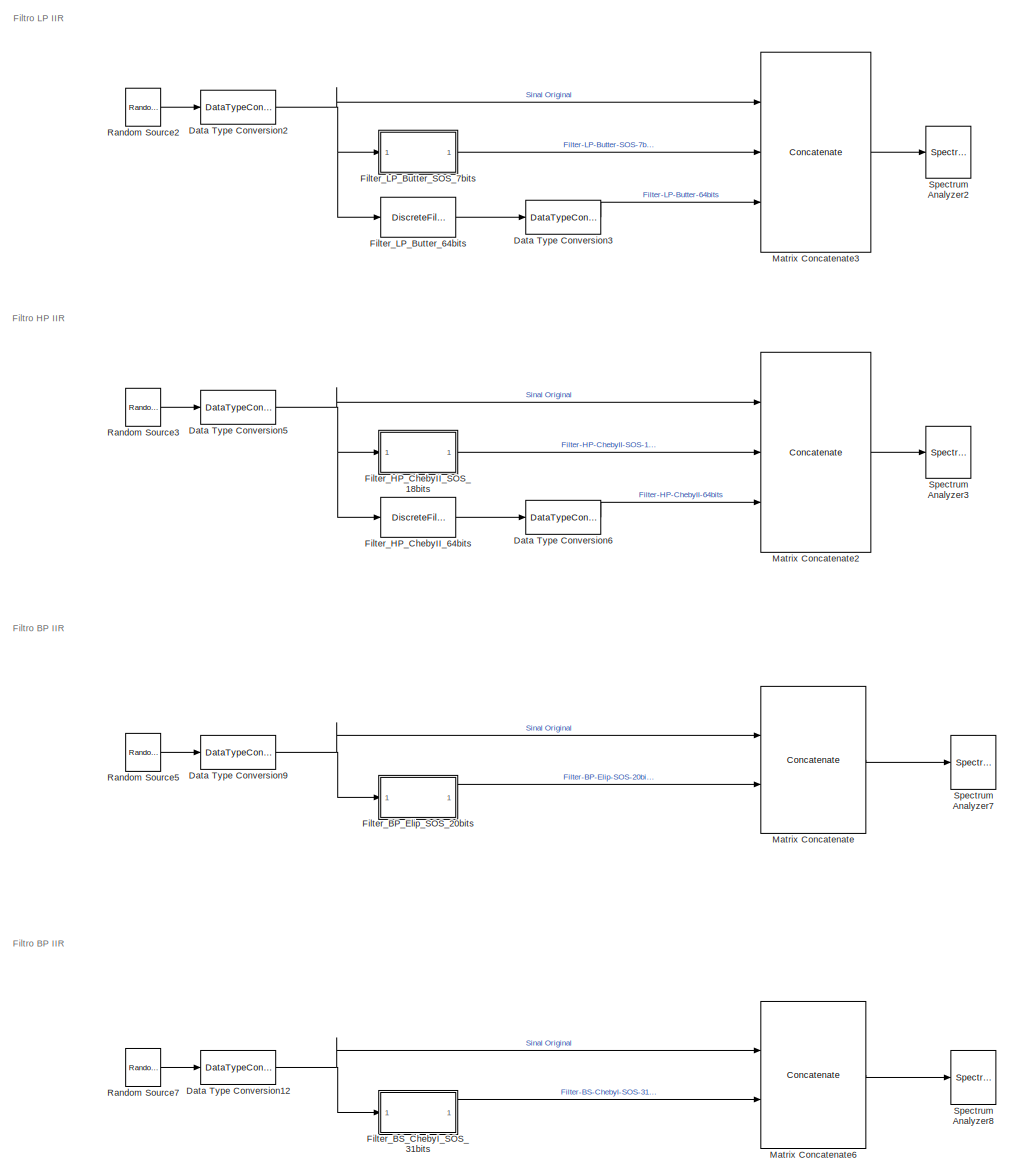
[diagram: root canvas - part 1/2, left side, full height]
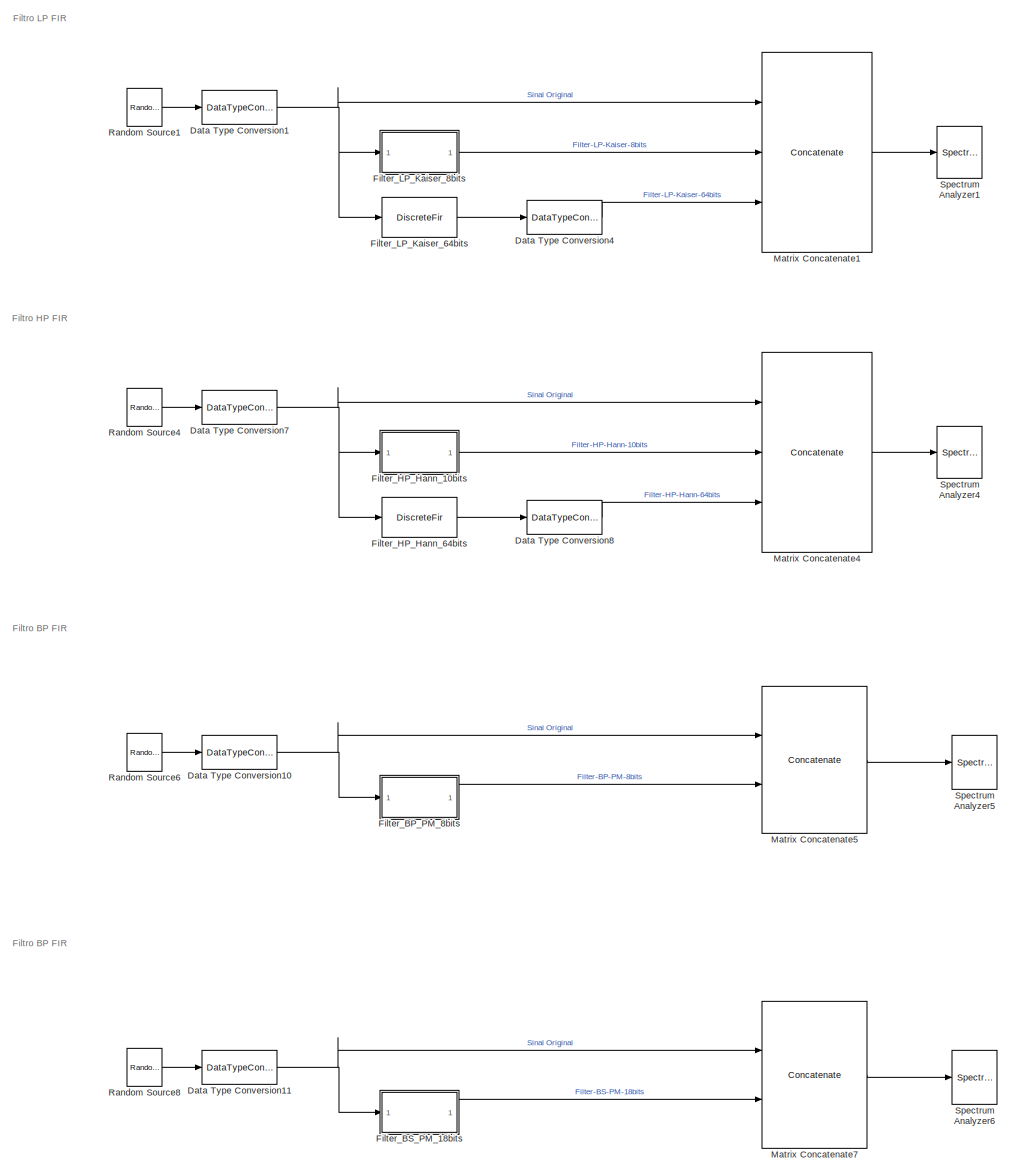
[diagram: root canvas - part 2/2, right side, full height]
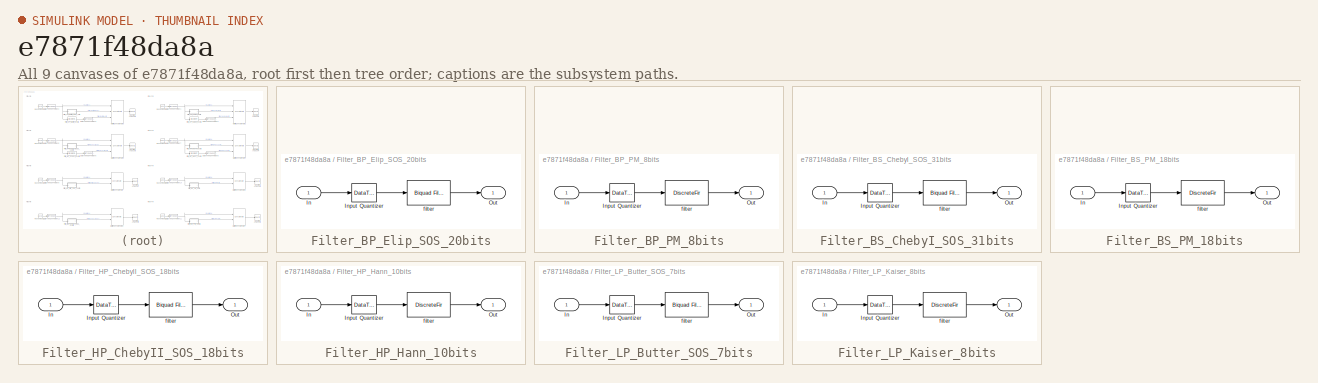
[diagram: thumbnail index - all 9 canvases of the model, root first then tree order]
MODEL slx_e7871f48da8a
KIND model
CONFIG AbsTol = auto
CONFIG FixedStep = auto
CONFIG MaxStep = auto
CONFIG MinStep = auto
CONFIG RelTol = 1e-3
CONFIG SampleTimeConstraint = Unconstrained
CONFIG Solver = FixedStepDiscrete
CONFIG SolverMode = Auto
CONFIG SolverName = FixedStepDiscrete
CONFIG StartTime = 0.0
CONFIG StopTime = 2
BLOCK [DataTypeConversion] Data Type Conversion1
  Commented = on
  RndMeth = Floor
  SaturateOnIntegerOverflow = off
BLOCK [DataTypeConversion] Data Type Conversion10
  Commented = on
  RndMeth = Floor
  SaturateOnIntegerOverflow = off
BLOCK [DataTypeConversion] Data Type Conversion11
  RndMeth = Floor
  SaturateOnIntegerOverflow = off
BLOCK [DataTypeConversion] Data Type Conversion12
  Commented = on
  RndMeth = Floor
  SaturateOnIntegerOverflow = off
BLOCK [DataTypeConversion] Data Type Conversion2
  Commented = on
  RndMeth = Floor
  SaturateOnIntegerOverflow = off
BLOCK [DataTypeConversion] Data Type Conversion3
  Commented = on
  RndMeth = Floor
  SaturateOnIntegerOverflow = off
BLOCK [DataTypeConversion] Data Type Conversion4
  Commented = on
  RndMeth = Floor
  SaturateOnIntegerOverflow = off
BLOCK [DataTypeConversion] Data Type Conversion5
  Commented = on
  RndMeth = Floor
  SaturateOnIntegerOverflow = off
BLOCK [DataTypeConversion] Data Type Conversion6
  Commented = on
  RndMeth = Floor
  SaturateOnIntegerOverflow = off
BLOCK [DataTypeConversion] Data Type Conversion7
  Commented = on
  RndMeth = Floor
  SaturateOnIntegerOverflow = off
BLOCK [DataTypeConversion] Data Type Conversion8
  Commented = on
  RndMeth = Floor
  SaturateOnIntegerOverflow = off
BLOCK [DataTypeConversion] Data Type Conversion9
  Commented = on
  RndMeth = Floor
  SaturateOnIntegerOverflow = off
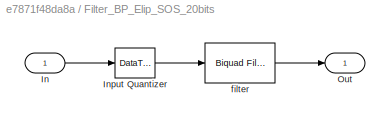
BLOCK [SubSystem] Filter_BP_Elip_SOS_20bits
  Commented = on
  Ports = [1, 1]
  RequestExecContextInheritance = off
  Tag = BlockMethodSubSystem
BLOCK [Inport] Filter_BP_Elip_SOS_20bits/In
  IconDisplay = Port number
BLOCK [DataTypeConversion] Filter_BP_Elip_SOS_20bits/Input Quantizer
  OutDataTypeStr = fixdt(1,16,15)
  RndMeth = Round
BLOCK [Outport] Filter_BP_Elip_SOS_20bits/Out
  IconDisplay = Port number
BLOCK [Reference] Filter_BP_Elip_SOS_20bits/filter  REF=dsparch4/Biquad Filter
  Ports = [1, 1]
  SourceBlock = dsparch4/Biquad Filter
  SourceType = Biquad Filter
  UserDataPersistent = on
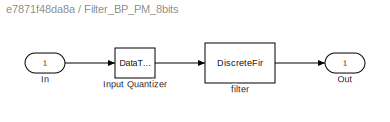
BLOCK [SubSystem] Filter_BP_PM_8bits
  Commented = on
  Ports = [1, 1]
  RequestExecContextInheritance = off
  Tag = BlockMethodSubSystem
BLOCK [Inport] Filter_BP_PM_8bits/In
  IconDisplay = Port number
BLOCK [DataTypeConversion] Filter_BP_PM_8bits/Input Quantizer
  OutDataTypeStr = fixdt(1,16,15)
  RndMeth = Round
BLOCK [Outport] Filter_BP_PM_8bits/Out
  IconDisplay = Port number
BLOCK [DiscreteFir] Filter_BP_PM_8bits/filter
  AccumDataTypeStr = fixdt(true,27,25)
  CoefDataTypeStr = fixdt(true,8,10)
  Coefficients = [-0.0433412092937293658 0.00428125381265335829 0.00433549487836447974 0.00392877576103001919 0.00473672650552339151 -0.00113536747739367079 0.00225664087871407099 0.0129845358018076552 -0.00161672199950467889 -0.0104604010793571591 0.0163185558804867653 0.0128200383399435375 -0.0195811015916752505 0.00139459356195246087 0.0265908628917521095 -0.00801815848233358545 -0.0159846853288865345 0.0182879...<+1281ch>
  FilterStructure = Direct form symmetric
  InputPortMap = u0
  InputProcessing = Columns as channels (frame based)
  OutDataTypeStr = fixdt(true,27,25)
  OutputPortMap = o0
  Ports = [1, 1]
  ProductDataTypeStr = fixdt(true,24,25)
  RndMeth = Convergent
  TapSumDataTypeStr = fixdt(true,17,15)
BLOCK [SubSystem] Filter_BS_ChebyI_SOS_31bits
  Commented = on
  Ports = [1, 1]
  RequestExecContextInheritance = off
  Tag = BlockMethodSubSystem
BLOCK [Inport] Filter_BS_ChebyI_SOS_31bits/In
  IconDisplay = Port number
BLOCK [DataTypeConversion] Filter_BS_ChebyI_SOS_31bits/Input Quantizer
  OutDataTypeStr = fixdt(1,16,15)
  RndMeth = Round
BLOCK [Outport] Filter_BS_ChebyI_SOS_31bits/Out
  IconDisplay = Port number
BLOCK [Reference] Filter_BS_ChebyI_SOS_31bits/filter  REF=dsparch4/Biquad Filter
  Ports = [1, 1]
  SourceBlock = dsparch4/Biquad Filter
  SourceType = Biquad Filter
  UserDataPersistent = on
BLOCK [SubSystem] Filter_BS_PM_18bits
  Ports = [1, 1]
  RequestExecContextInheritance = off
  Tag = BlockMethodSubSystem
BLOCK [Inport] Filter_BS_PM_18bits/In
  IconDisplay = Port number
BLOCK [DataTypeConversion] Filter_BS_PM_18bits/Input Quantizer
  OutDataTypeStr = fixdt(1,16,15)
  RndMeth = Round
BLOCK [Outport] Filter_BS_PM_18bits/Out
  IconDisplay = Port number
BLOCK [DiscreteFir] Filter_BS_PM_18bits/filter
  AccumDataTypeStr = fixdt(true,35,32)
  CoefDataTypeStr = fixdt(true,18,17)
  Coefficients = [0.00939244855741547431 0.00168644324503250398 -0.00123334499269933651 0.00145794752474150894 -0.00170828863653412779 0.0010371674316927424 -0.000634686404143752943 0.00136311298569206278 -0.00129284830014917774 0.000232789421018792837 -0.000621585322147632049 0.00144095326498087451 -0.000402030343464907663 -9.93042424858531166e-05 -0.00117660388067255444 0.000857139817899975971 0.0004755766975208...<+5732ch>
  FilterStructure = Direct form symmetric
  InputPortMap = u0
  InputProcessing = Columns as channels (frame based)
  OutDataTypeStr = fixdt(true,35,32)
  OutputPortMap = o0
  Ports = [1, 1]
  ProductDataTypeStr = fixdt(true,34,32)
  RndMeth = Convergent
  TapSumDataTypeStr = fixdt(true,17,15)
BLOCK [DiscreteFilter] Filter_HP_ChebyII_64bits
  Commented = on
  Denominator = [1 0.877081919298363322 1.20330623409765192 0.426634402615272967 0.249553249203958494 0.0208863375040825895 0.00662248810328856363]
  InputPortMap = u0
  InputProcessing = Columns as channels (frame based)
  Numerator = [0.0559188313546608654 -0.13637683754179869 0.237261208219190139 -0.27576555775587841 0.237261208219190139 -0.13637683754179869 0.0559188313546608584]
  Ports = [1, 1]
  Tag = BlockMethodSubSystem
  a0EqualsOne = on
BLOCK [SubSystem] Filter_HP_ChebyII_SOS_18bits
  Commented = on
  Ports = [1, 1]
  RequestExecContextInheritance = off
  Tag = BlockMethodSubSystem
BLOCK [Inport] Filter_HP_ChebyII_SOS_18bits/In
  IconDisplay = Port number
BLOCK [DataTypeConversion] Filter_HP_ChebyII_SOS_18bits/Input Quantizer
  OutDataTypeStr = fixdt(1,16,15)
  RndMeth = Round
BLOCK [Outport] Filter_HP_ChebyII_SOS_18bits/Out
  IconDisplay = Port number
BLOCK [Reference] Filter_HP_ChebyII_SOS_18bits/filter  REF=dsparch4/Biquad Filter
  Ports = [1, 1]
  SourceBlock = dsparch4/Biquad Filter
  SourceType = Biquad Filter
  UserDataPersistent = on
BLOCK [SubSystem] Filter_HP_Hann_10bits
  Commented = on
  Ports = [1, 1]
  RequestExecContextInheritance = off
  Tag = BlockMethodSubSystem
BLOCK [Inport] Filter_HP_Hann_10bits/In
  IconDisplay = Port number
BLOCK [DataTypeConversion] Filter_HP_Hann_10bits/Input Quantizer
  OutDataTypeStr = fixdt(1,16,15)
  RndMeth = Round
BLOCK [Outport] Filter_HP_Hann_10bits/Out
  IconDisplay = Port number
BLOCK [DiscreteFir] Filter_HP_Hann_10bits/filter
  AccumDataTypeStr = fixdt(true,27,25)
  CoefDataTypeStr = fixdt(true,10,10)
  Coefficients = [-3.16228700308905018e-05 6.58621006149563763e-05 0.000776097424594572832 -0.00123190726621532883 -0.00166048429484726384 0.00472150775562455317 0.000207579074215400968 -0.0098865670153832335 0.00661569202063748852 0.013228130452963581 -0.0204947917682235907 -0.00852732671830981441 0.0401741168966580214 -0.0129883671048673984 -0.0612137762552903905 0.0693172305105436287 0.0774510719237060941 -0.30...<+454ch>
  FilterStructure = Direct form symmetric
  InputPortMap = u0
  InputProcessing = Columns as channels (frame based)
  OutDataTypeStr = fixdt(true,27,25)
  OutputPortMap = o0
  Ports = [1, 1]
  ProductDataTypeStr = fixdt(true,26,25)
  RndMeth = Convergent
  TapSumDataTypeStr = fixdt(true,17,15)
BLOCK [DiscreteFir] Filter_HP_Hann_64bits
  Coefficients = [-3.16228700308905018e-05 6.58621006149563763e-05 0.000776097424594572832 -0.00123190726621532883 -0.00166048429484726384 0.00472150775562455317 0.000207579074215400968 -0.0098865670153832335 0.00661569202063748852 0.013228130452963581 -0.0204947917682235907 -0.00852732671830981441 0.0401741168966580214 -0.0129883671048673984 -0.0612137762552903905 0.0693172305105436287 0.0774510719237060941 -0.30...<+454ch>
  Commented = on
  FilterStructure = Direct form symmetric
  InputPortMap = u0
  InputProcessing = Columns as channels (frame based)
  OutputPortMap = o0
  Ports = [1, 1]
  Tag = BlockMethodSubSystem
BLOCK [DiscreteFilter] Filter_LP_Butter_64bits
  Commented = on
  Denominator = [1 0.169613480636834985 1.0725472360938022 0.126588905837326127 0.296672196811545885 0.0216830884738356162 0.0209853628033078755 0.000713622450830073379 0.000177472924043483085]
  InputPortMap = u0
  InputProcessing = Columns as channels (frame based)
  Numerator = [0.0188176788491913188 0.150541430793530551 0.526895007777356872 1.05379001555471374 1.31723751944339229 1.05379001555471374 0.526895007777356872 0.150541430793530551 0.0188176788491913188]
  Ports = [1, 1]
  Tag = BlockMethodSubSystem
  a0EqualsOne = on
BLOCK [SubSystem] Filter_LP_Butter_SOS_7bits
  Commented = on
  Ports = [1, 1]
  RequestExecContextInheritance = off
  Tag = BlockMethodSubSystem
BLOCK [Inport] Filter_LP_Butter_SOS_7bits/In
  IconDisplay = Port number
BLOCK [DataTypeConversion] Filter_LP_Butter_SOS_7bits/Input Quantizer
  OutDataTypeStr = fixdt(1,16,15)
  RndMeth = Round
BLOCK [Outport] Filter_LP_Butter_SOS_7bits/Out
  IconDisplay = Port number
BLOCK [Reference] Filter_LP_Butter_SOS_7bits/filter  REF=dsparch4/Biquad Filter
  Ports = [1, 1]
  SourceBlock = dsparch4/Biquad Filter
  SourceType = Biquad Filter
  UserDataPersistent = on
BLOCK [DiscreteFir] Filter_LP_Kaiser_64bits
  Coefficients = [0.0273632501347615166 -0.0143274016333116705 -0.0496900071545827646 0.0522341743948118928 0.0722918445052733033 -0.143149069954147889 -0.0891767371893470578 0.536803318067287871 0.961649065426961824 0.536803318067287871 -0.0891767371893470578 -0.143149069954147889 0.0722918445052733033 0.0522341743948118928 -0.0496900071545827646 -0.0143274016333116705 0.0273632501347615166]
  Commented = on
  FilterStructure = Direct form symmetric
  InputPortMap = u0
  InputProcessing = Columns as channels (frame based)
  OutputPortMap = o0
  Ports = [1, 1]
  Tag = BlockMethodSubSystem
BLOCK [SubSystem] Filter_LP_Kaiser_8bits
  Commented = on
  Ports = [1, 1]
  RequestExecContextInheritance = off
  Tag = BlockMethodSubSystem
BLOCK [Inport] Filter_LP_Kaiser_8bits/In
  IconDisplay = Port number
BLOCK [DataTypeConversion] Filter_LP_Kaiser_8bits/Input Quantizer
  OutDataTypeStr = fixdt(1,16,15)
  RndMeth = Round
BLOCK [Outport] Filter_LP_Kaiser_8bits/Out
  IconDisplay = Port number
BLOCK [DiscreteFir] Filter_LP_Kaiser_8bits/filter
  AccumDataTypeStr = fixdt(true,25,22)
  CoefDataTypeStr = fixdt(true,8,7)
  Coefficients = [0.0273632501347615166 -0.0143274016333116705 -0.0496900071545827646 0.0522341743948118928 0.0722918445052733033 -0.143149069954147889 -0.0891767371893470578 0.536803318067287871 0.961649065426961824 0.536803318067287871 -0.0891767371893470578 -0.143149069954147889 0.0722918445052733033 0.0522341743948118928 -0.0496900071545827646 -0.0143274016333116705 0.0273632501347615166]
  FilterStructure = Direct form symmetric
  InputPortMap = u0
  InputProcessing = Columns as channels (frame based)
  OutDataTypeStr = fixdt(true,25,22)
  OutputPortMap = o0
  Ports = [1, 1]
  ProductDataTypeStr = fixdt(true,24,22)
  RndMeth = Convergent
  TapSumDataTypeStr = fixdt(true,17,15)
BLOCK [Concatenate] Matrix Concatenate
  Commented = on
  ConcatenateDimension = 2
  Mode = Multidimensional array
  Ports = [2, 1]
BLOCK [Concatenate] Matrix Concatenate1
  Commented = on
  ConcatenateDimension = 2
  Mode = Multidimensional array
  NumInputs = 3
  Ports = [3, 1]
BLOCK [Concatenate] Matrix Concatenate2
  Commented = on
  ConcatenateDimension = 2
  Mode = Multidimensional array
  NumInputs = 3
  Ports = [3, 1]
BLOCK [Concatenate] Matrix Concatenate3
  Commented = on
  ConcatenateDimension = 2
  Mode = Multidimensional array
  NumInputs = 3
  Ports = [3, 1]
BLOCK [Concatenate] Matrix Concatenate4
  Commented = on
  ConcatenateDimension = 2
  Mode = Multidimensional array
  NumInputs = 3
  Ports = [3, 1]
BLOCK [Concatenate] Matrix Concatenate5
  Commented = on
  ConcatenateDimension = 2
  Mode = Multidimensional array
  Ports = [2, 1]
BLOCK [Concatenate] Matrix Concatenate6
  Commented = on
  ConcatenateDimension = 2
  Mode = Multidimensional array
  Ports = [2, 1]
BLOCK [Concatenate] Matrix Concatenate7
  ConcatenateDimension = 2
  Mode = Multidimensional array
  Ports = [2, 1]
BLOCK [Reference] Random Source1  REF=dspsrcs4/Random
Source
  Commented = on
  Ports = [0, 1]
  SourceBlock = dspsrcs4/Random\nSource
  SourceType = Random Source
  UserDataPersistent = on
BLOCK [Reference] Random Source2  REF=dspsrcs4/Random
Source
  Commented = on
  Ports = [0, 1]
  SourceBlock = dspsrcs4/Random\nSource
  SourceType = Random Source
  UserDataPersistent = on
BLOCK [Reference] Random Source3  REF=dspsrcs4/Random
Source
  Commented = on
  Ports = [0, 1]
  SourceBlock = dspsrcs4/Random\nSource
  SourceType = Random Source
  UserDataPersistent = on
BLOCK [Reference] Random Source4  REF=dspsrcs4/Random
Source
  Commented = on
  Ports = [0, 1]
  SourceBlock = dspsrcs4/Random\nSource
  SourceType = Random Source
  UserDataPersistent = on
BLOCK [Reference] Random Source5  REF=dspsrcs4/Random
Source
  Commented = on
  Ports = [0, 1]
  SourceBlock = dspsrcs4/Random\nSource
  SourceType = Random Source
  UserDataPersistent = on
BLOCK [Reference] Random Source6  REF=dspsrcs4/Random
Source
  Commented = on
  Ports = [0, 1]
  SourceBlock = dspsrcs4/Random\nSource
  SourceType = Random Source
  UserDataPersistent = on
BLOCK [Reference] Random Source7  REF=dspsrcs4/Random
Source
  Commented = on
  Ports = [0, 1]
  SourceBlock = dspsrcs4/Random\nSource
  SourceType = Random Source
  UserDataPersistent = on
BLOCK [Reference] Random Source8  REF=dspsrcs4/Random
Source
  Ports = [0, 1]
  SourceBlock = dspsrcs4/Random\nSource
  SourceType = Random Source
  UserDataPersistent = on
BLOCK [SpectrumAnalyzer] Spectrum Analyzer1
  Commented = on
  Ports = [1]
  ScopeSpecificationString = spbscopes.SpectrumAnalyzerBlockCfg('CurrentConfiguration', extmgr.ConfigurationSet(extmgr.Configuration('Core','General UI',true),extmgr.Configuration('Core','Source UI',true),extmgr.Configuration('Sources','WiredSimulink',true),extmgr.Configuration('Sources','Workspace',false),extmgr.Configuration('Sources','SPTool',false),extmgr.Configuration('Sources','Streaming',false),extmgr.Configuration('So...<+2560ch>  <repeated x4 — deduplicated; at blocks: Spectrum Analyzer1, Spectrum Analyzer2, Spectrum Analyzer3, Spectrum Analyzer4>
BLOCK [SpectrumAnalyzer] Spectrum Analyzer2
  Commented = on
  Ports = [1]
BLOCK [SpectrumAnalyzer] Spectrum Analyzer3
  Commented = on
  Ports = [1]
BLOCK [SpectrumAnalyzer] Spectrum Analyzer4
  Commented = on
  Ports = [1]
BLOCK [SpectrumAnalyzer] Spectrum Analyzer5
  Commented = on
  Ports = [1]
  ScopeSpecificationString = spbscopes.SpectrumAnalyzerBlockCfg('CurrentConfiguration', extmgr.ConfigurationSet(extmgr.Configuration('Core','General UI',true),extmgr.Configuration('Core','Source UI',true),extmgr.Configuration('Sources','WiredSimulink',true),extmgr.Configuration('Sources','Workspace',false),extmgr.Configuration('Sources','SPTool',false),extmgr.Configuration('Sources','Streaming',false),extmgr.Configuration('So...<+2387ch>  <repeated x4 — deduplicated; at blocks: Spectrum Analyzer5, Spectrum Analyzer6, Spectrum Analyzer7, Spectrum Analyzer8>
BLOCK [SpectrumAnalyzer] Spectrum Analyzer6
  Ports = [1]
BLOCK [SpectrumAnalyzer] Spectrum Analyzer7
  Commented = on
  Ports = [1]
BLOCK [SpectrumAnalyzer] Spectrum Analyzer8
  Commented = on
  Ports = [1]
ANNOTATION (root): Filtro BP FIR
ANNOTATION (root): Filtro BP IIR
ANNOTATION (root): Filtro HP FIR
ANNOTATION (root): Filtro HP IIR
ANNOTATION (root): Filtro LP FIR
ANNOTATION (root): Filtro LP IIR
NET Data Type Conversion10:1 -> Filter_BP_PM_8bits:1, Matrix Concatenate5:1
NET Data Type Conversion11:1 -> Filter_BS_PM_18bits:1, Matrix Concatenate7:1
NET Data Type Conversion12:1 -> Filter_BS_ChebyI_SOS_31bits:1, Matrix Concatenate6:1
NET Data Type Conversion1:1 -> Filter_LP_Kaiser_64bits:1, Filter_LP_Kaiser_8bits:1, Matrix Concatenate1:1
NET Data Type Conversion2:1 -> Filter_LP_Butter_64bits:1, Filter_LP_Butter_SOS_7bits:1, Matrix Concatenate3:1
LINE Data Type Conversion3:1 -> Matrix Concatenate3:3
LINE Data Type Conversion4:1 -> Matrix Concatenate1:3
NET Data Type Conversion5:1 -> Filter_HP_ChebyII_64bits:1, Filter_HP_ChebyII_SOS_18bits:1, Matrix Concatenate2:1
LINE Data Type Conversion6:1 -> Matrix Concatenate2:3
NET Data Type Conversion7:1 -> Filter_HP_Hann_10bits:1, Filter_HP_Hann_64bits:1, Matrix Concatenate4:1
LINE Data Type Conversion8:1 -> Matrix Concatenate4:3
NET Data Type Conversion9:1 -> Filter_BP_Elip_SOS_20bits:1, Matrix Concatenate:1
LINE Filter_BP_Elip_SOS_20bits/In:1 -> Filter_BP_Elip_SOS_20bits/Input Quantizer:1
LINE Filter_BP_Elip_SOS_20bits/Input Quantizer:1 -> Filter_BP_Elip_SOS_20bits/filter:1
LINE Filter_BP_Elip_SOS_20bits/filter:1 -> Filter_BP_Elip_SOS_20bits/Out:1
LINE Filter_BP_Elip_SOS_20bits:1 -> Matrix Concatenate:2
LINE Filter_BP_PM_8bits/In:1 -> Filter_BP_PM_8bits/Input Quantizer:1
LINE Filter_BP_PM_8bits/Input Quantizer:1 -> Filter_BP_PM_8bits/filter:1
LINE Filter_BP_PM_8bits/filter:1 -> Filter_BP_PM_8bits/Out:1
LINE Filter_BP_PM_8bits:1 -> Matrix Concatenate5:2
LINE Filter_BS_ChebyI_SOS_31bits/In:1 -> Filter_BS_ChebyI_SOS_31bits/Input Quantizer:1
LINE Filter_BS_ChebyI_SOS_31bits/Input Quantizer:1 -> Filter_BS_ChebyI_SOS_31bits/filter:1
LINE Filter_BS_ChebyI_SOS_31bits/filter:1 -> Filter_BS_ChebyI_SOS_31bits/Out:1
LINE Filter_BS_ChebyI_SOS_31bits:1 -> Matrix Concatenate6:2
LINE Filter_BS_PM_18bits/In:1 -> Filter_BS_PM_18bits/Input Quantizer:1
LINE Filter_BS_PM_18bits/Input Quantizer:1 -> Filter_BS_PM_18bits/filter:1
LINE Filter_BS_PM_18bits/filter:1 -> Filter_BS_PM_18bits/Out:1
LINE Filter_BS_PM_18bits:1 -> Matrix Concatenate7:2
LINE Filter_HP_ChebyII_64bits:1 -> Data Type Conversion6:1
LINE Filter_HP_ChebyII_SOS_18bits/In:1 -> Filter_HP_ChebyII_SOS_18bits/Input Quantizer:1
LINE Filter_HP_ChebyII_SOS_18bits/Input Quantizer:1 -> Filter_HP_ChebyII_SOS_18bits/filter:1
LINE Filter_HP_ChebyII_SOS_18bits/filter:1 -> Filter_HP_ChebyII_SOS_18bits/Out:1
LINE Filter_HP_ChebyII_SOS_18bits:1 -> Matrix Concatenate2:2
LINE Filter_HP_Hann_10bits/In:1 -> Filter_HP_Hann_10bits/Input Quantizer:1
LINE Filter_HP_Hann_10bits/Input Quantizer:1 -> Filter_HP_Hann_10bits/filter:1
LINE Filter_HP_Hann_10bits/filter:1 -> Filter_HP_Hann_10bits/Out:1
LINE Filter_HP_Hann_10bits:1 -> Matrix Concatenate4:2
LINE Filter_HP_Hann_64bits:1 -> Data Type Conversion8:1
LINE Filter_LP_Butter_64bits:1 -> Data Type Conversion3:1
LINE Filter_LP_Butter_SOS_7bits/In:1 -> Filter_LP_Butter_SOS_7bits/Input Quantizer:1
LINE Filter_LP_Butter_SOS_7bits/Input Quantizer:1 -> Filter_LP_Butter_SOS_7bits/filter:1
LINE Filter_LP_Butter_SOS_7bits/filter:1 -> Filter_LP_Butter_SOS_7bits/Out:1
LINE Filter_LP_Butter_SOS_7bits:1 -> Matrix Concatenate3:2
LINE Filter_LP_Kaiser_64bits:1 -> Data Type Conversion4:1
LINE Filter_LP_Kaiser_8bits/In:1 -> Filter_LP_Kaiser_8bits/Input Quantizer:1
LINE Filter_LP_Kaiser_8bits/Input Quantizer:1 -> Filter_LP_Kaiser_8bits/filter:1
LINE Filter_LP_Kaiser_8bits/filter:1 -> Filter_LP_Kaiser_8bits/Out:1
LINE Filter_LP_Kaiser_8bits:1 -> Matrix Concatenate1:2
LINE Matrix Concatenate1:1 -> Spectrum Analyzer1:1
LINE Matrix Concatenate2:1 -> Spectrum Analyzer3:1
LINE Matrix Concatenate3:1 -> Spectrum Analyzer2:1
LINE Matrix Concatenate4:1 -> Spectrum Analyzer4:1
LINE Matrix Concatenate5:1 -> Spectrum Analyzer5:1
LINE Matrix Concatenate6:1 -> Spectrum Analyzer8:1
LINE Matrix Concatenate7:1 -> Spectrum Analyzer6:1
LINE Matrix Concatenate:1 -> Spectrum Analyzer7:1
LINE Random Source1:1 -> Data Type Conversion1:1
LINE Random Source2:1 -> Data Type Conversion2:1
LINE Random Source3:1 -> Data Type Conversion5:1
LINE Random Source4:1 -> Data Type Conversion7:1
LINE Random Source5:1 -> Data Type Conversion9:1
LINE Random Source6:1 -> Data Type Conversion10:1
LINE Random Source7:1 -> Data Type Conversion12:1
LINE Random Source8:1 -> Data Type Conversion11:1
note: NET lines group one-source signal fan-out (src -> all destinations, sorted); 1:1 wires keep LINE
